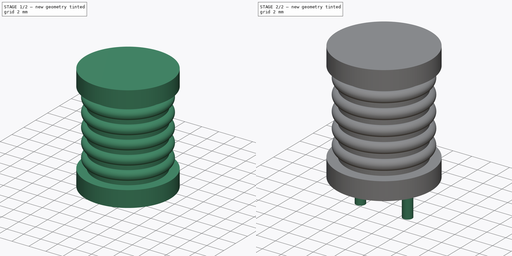
[diagram: build sequence overview — one tinted view per stage of 2, left to right]
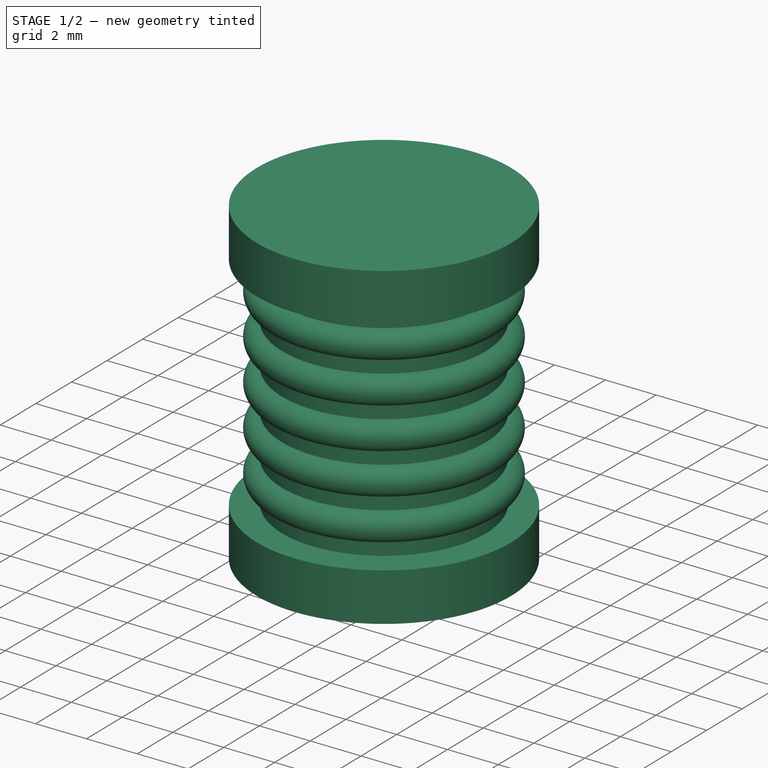
[diagram: stage 1 of 2 — iso view after this stage's code; geometry added in this stage tinted green]
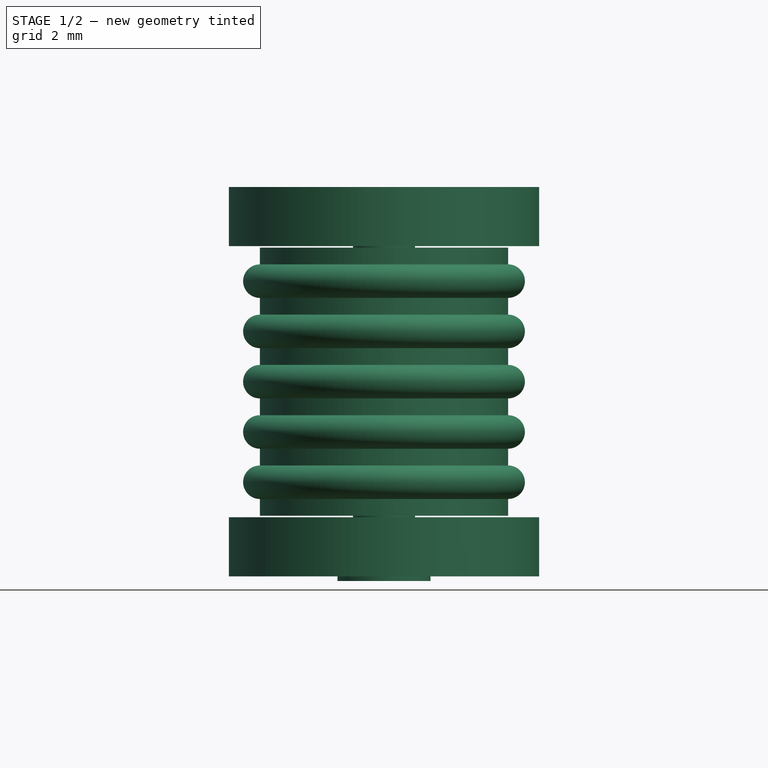
[diagram: stage 1 of 2 — front view after this stage's code; geometry added in this stage tinted green]
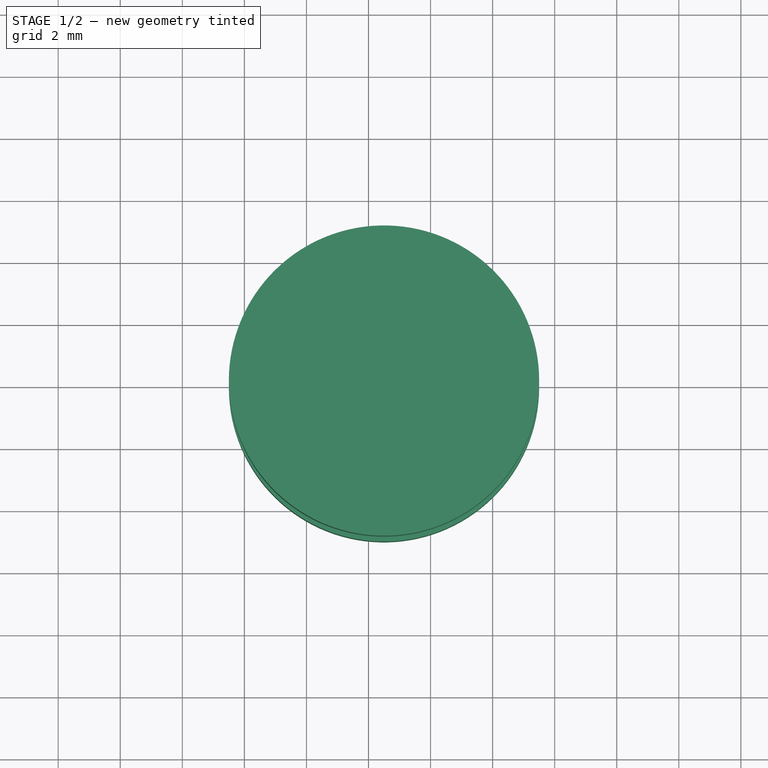
[diagram: stage 1 of 2 — top view after this stage's code; geometry added in this stage tinted green]
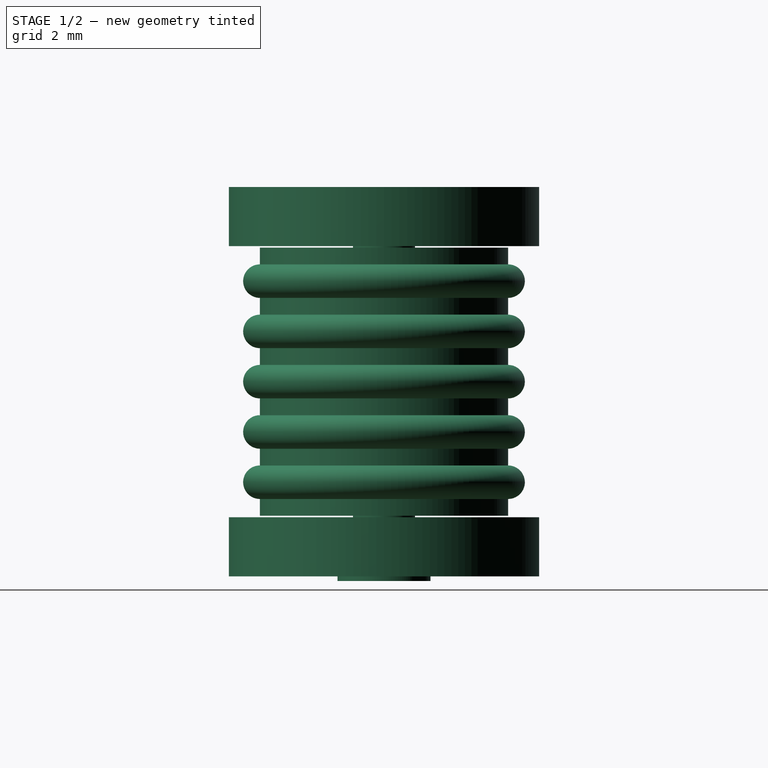
[diagram: stage 1 of 2 — right view after this stage's code; geometry added in this stage tinted green]
FCSTD DOCUMENT  (FreeCAD 0.16R6712 (Git))
Label: L_Radial_D10.0mm_P5.00mm_Fastron_07M
License: All rights reserved
LicenseURL: http://en.wikipedia.org/wiki/All_rights_reserved
objects: Sketcher::SketchObject×3, PartDesign::Revolution×2, Spreadsheet::Sheet×1, PartDesign::Pad×1, Part::MultiFuse×1
note: 10 computed .brp shape members not serialized (recipe doc carries the construction recipe); baked Part::Feature solids carry a one-line shape summary decoded from their .brp

FEATURE [Sketcher::SketchObject] Sketch
  Placement = pos=(2.5,0,0) rot=(1,0,0;1.5708rad)
  expr: Constraints[29] = Spreadsheet.H * 0.15
  expr: Constraints[28] = Spreadsheet.Wx * 0.1
  expr: Constraints[25] = Spreadsheet.RMx / 2 - Spreadsheet.d_wire
  expr: Constraints[22] = Spreadsheet.H
  expr: Placement.Base.x = Spreadsheet.RMx / 2
  expr: Constraints[21] = Spreadsheet.Wx / 2
  expr: Placement.Base.y = Spreadsheet.RMy / 2
  sketch-geometry (10):
    g0: LineSegment StartX=0 StartY=0.05 StartZ=0 EndX=1.5 EndY=0.05 EndZ=0
    g1: LineSegment StartX=1.5 StartY=0.05 StartZ=0 EndX=1.5 EndY=0.2 EndZ=0
    g2: LineSegment StartX=1.5 StartY=0.2 StartZ=0 EndX=5 EndY=0.2 EndZ=0
    g3: LineSegment StartX=5 StartY=0.2 StartZ=0 EndX=5 EndY=2.105 EndZ=0
    g4: LineSegment StartX=5 StartY=2.105 StartZ=0 EndX=1 EndY=2.105 EndZ=0
    g5: LineSegment StartX=1 StartY=2.105 StartZ=0 EndX=1 EndY=10.845 EndZ=0
    g6: LineSegment StartX=1 StartY=10.845 StartZ=0 EndX=5 EndY=10.845 EndZ=0
    g7: LineSegment StartX=5 StartY=10.845 StartZ=0 EndX=5 EndY=12.75 EndZ=0
    g8: LineSegment StartX=5 StartY=12.75 StartZ=0 EndX=0 EndY=12.75 EndZ=0
    g9: LineSegment StartX=0 StartY=12.75 StartZ=0 EndX=0 EndY=0.05 EndZ=0
  constraints (30):
    c: PointOnObject(g0,g-2)
    c: Horizontal(g0)
    c: Coincident(g1,g0)
    c: Vertical(g1)
    c: Coincident(g2,g1)
    c: Horizontal(g2)
    c: Horizontal(g4)
    c: Vertical(g5)
    c: Horizontal(g6)
    c: Coincident(g7,g6)
    c: Coincident(g8,g7)
    c: PointOnObject(g8,g-2)
    c: Horizontal(g8)
    c: Coincident(g9,g8)
    c: Coincident(g9,g0)
    c: Coincident(g2,g3)
    c: Coincident(g4,g5)
    c: Vertical(g3)
    c: Vertical(g7)
    c: DistanceX(g6,g3) = 0
    c: Equal(g7,g3)
    c: DistanceX(g8,g8) = 5
    c: DistanceY(g9,g9) = 12.7
    c: DistanceY(g-1,g0) = 0.05
    c: DistanceY(g-1,g1) = 0.2
    c: DistanceX(g-1,g0) = 1.5
    c: Coincident(g4,g3)
    c: Coincident(g5,g6)
    c: DistanceX(g8,g5) = 1
    c: DistanceY(g7,g7) = 1.905
FEATURE [PartDesign::Revolution] Revolution
  Angle = 360
  Axis = (0,0,1)
  Base = (2.5,0,0)
  Placement = pos=(2.5,0,0) rot=(1,0,0;1.5708rad)
  ReferenceAxis = -> Sketch [V_Axis]
  Reversed = true
  Sketch = -> Sketch
FEATURE [Sketcher::SketchObject] Sketch002
  Placement = pos=(2.5,0,0) rot=(1,0,0;1.5708rad)
  expr: Constraints[48] = (Spreadsheet.H - Spreadsheet.H * 0.3 - 0.25) / 16
  expr: Constraints[25] = (Spreadsheet.H - Spreadsheet.H * 0.3 - 0.25) / 8
  expr: Constraints[6] = Spreadsheet.Wx * 0.1
  expr: Placement.Base.y = Spreadsheet.RMy / 2
  expr: Placement.Base.x = Spreadsheet.RMx / 2
  expr: Constraints[43] = (Spreadsheet.H - Spreadsheet.H * 0.3 - 0.25) / 16
  expr: Constraints[9] = Spreadsheet.Wx * 0.4
  expr: Constraints[5] = Spreadsheet.H * 0.15 + 0.25
  sketch-geometry (15):
    g0: LineSegment StartX=4 StartY=2.155 StartZ=0 EndX=1 EndY=2.155 EndZ=0
    g1: LineSegment StartX=1 StartY=2.155 StartZ=0 EndX=1 EndY=10.795 EndZ=0
    g2: LineSegment StartX=1 StartY=10.795 StartZ=0 EndX=4 EndY=10.795 EndZ=0
    g3: LineSegment [constr] StartX=4 StartY=10.795 StartZ=0 EndX=4 EndY=2.155 EndZ=0
    g4: ArcOfCircle CenterX=4 CenterY=9.715 CenterZ=0 NormalX=0 NormalY=0 NormalZ=1 Radius=0.54 StartAngle=4.71239 EndAngle=7.85398
    g5: ArcOfCircle CenterX=4 CenterY=8.095 CenterZ=0 NormalX=0 NormalY=0 NormalZ=1 Radius=0.54 StartAngle=4.71239 EndAngle=7.85398
    g6: ArcOfCircle CenterX=4 CenterY=6.475 CenterZ=0 NormalX=0 NormalY=0 NormalZ=1 Radius=0.54 StartAngle=4.71239 EndAngle=7.85398
    g7: ArcOfCircle CenterX=4 CenterY=4.855 CenterZ=0 NormalX=0 NormalY=0 NormalZ=1 Radius=0.54 StartAngle=4.71239 EndAngle=7.85398
    g8: ArcOfCircle CenterX=4 CenterY=3.235 CenterZ=0 NormalX=0 NormalY=0 NormalZ=1 Radius=0.54 StartAngle=4.71239 EndAngle=7.85398
    g9: LineSegment StartX=4 StartY=10.795 StartZ=0 EndX=4 EndY=10.255 EndZ=0
    g10: LineSegment StartX=4 StartY=9.175 StartZ=0 EndX=4 EndY=8.635 EndZ=0
    g11: LineSegment StartX=4 StartY=7.555 StartZ=0 EndX=4 EndY=7.015 EndZ=0
    g12: LineSegment StartX=4 StartY=5.935 StartZ=0 EndX=4 EndY=5.395 EndZ=0
    g13: LineSegment StartX=4 StartY=4.315 StartZ=0 EndX=4 EndY=3.775 EndZ=0
    g14: LineSegment StartX=4 StartY=2.155 StartZ=0 EndX=4 EndY=2.695 EndZ=0
  constraints (49):
    c: Horizontal(g0)
    c: Vertical(g1)
    c: Horizontal(g2)
    c: Coincident(g0,g1)
    c: Coincident(g1,g2)
    c: DistanceY(g-1,g0) = 2.155
    c: DistanceX(g-1,g0) = 1
    c: Coincident(g3,g2)
    c: Coincident(g3,g0)
    c: DistanceX(g-1,g0) = 4
    c: PointOnObject(g4,g3)
    c: PointOnObject(g4,g3)
    c: PointOnObject(g4,g3)
    c: PointOnObject(g5,g3)
    c: PointOnObject(g5,g3)
    c: PointOnObject(g5,g3)
    c: PointOnObject(g6,g3)
    c: PointOnObject(g6,g3)
    c: PointOnObject(g7,g3)
    c: PointOnObject(g7,g3)
    c: PointOnObject(g7,g3)
    c: PointOnObject(g8,g3)
    c: PointOnObject(g8,g3)
    c: PointOnObject(g8,g3)
    c: PointOnObject(g6,g3)
    c: DistanceY(g4,g4) = 1.08
    c: Equal(g4,g5)
    c: Equal(g5,g6)
    c: Equal(g6,g7)
    c: Equal(g7,g8)
    c: Coincident(g9,g2)
    c: Coincident(g9,g4)
    c: Coincident(g10,g4)
    c: Coincident(g10,g5)
    c: Vertical(g10)
    c: Coincident(g11,g5)
    c: Coincident(g11,g6)
    c: Coincident(g12,g6)
    c: Coincident(g12,g7)
    c: Coincident(g13,g7)
    c: Coincident(g13,g8)
    c: Coincident(g14,g0)
    c: Coincident(g14,g8)
    c: DistanceY(g4,g2) = 0.54
    c: Equal(g9,g10)
    c: Equal(g10,g11)
    c: Equal(g11,g12)
    c: Equal(g12,g13)
    c: DistanceY(g0,g8) = 0.54
FEATURE [PartDesign::Revolution] Revolution001
  Angle = 360
  Axis = (0,0,1)
  Base = (2.5,0,0)
  Placement = pos=(2.5,0,0) rot=(1,0,0;1.5708rad)
  ReferenceAxis = -> Sketch002 [V_Axis]
  Reversed = true
  Sketch = -> Sketch002
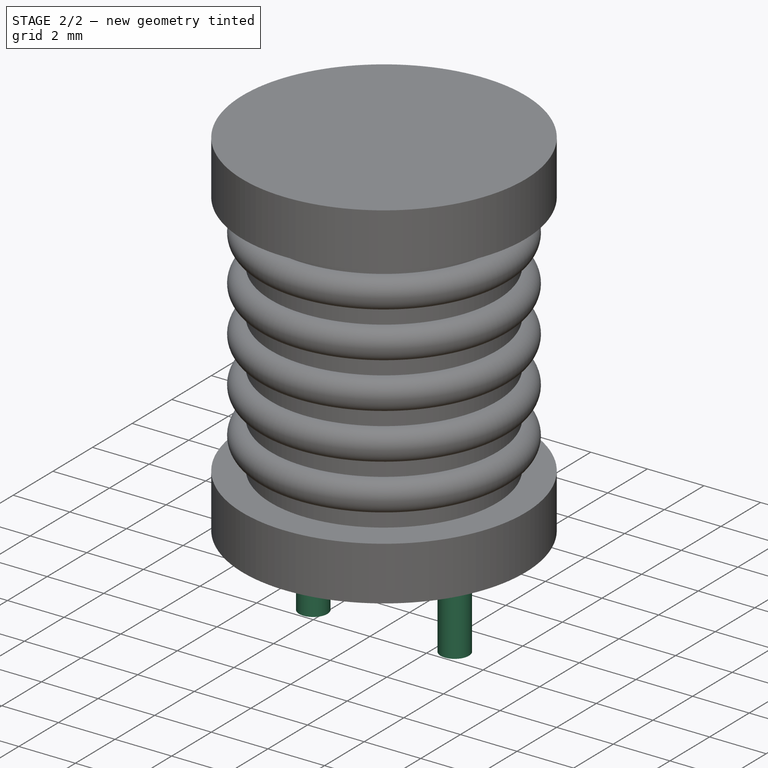
[diagram: stage 2 of 2 — iso view after this stage's code; geometry added in this stage tinted green]
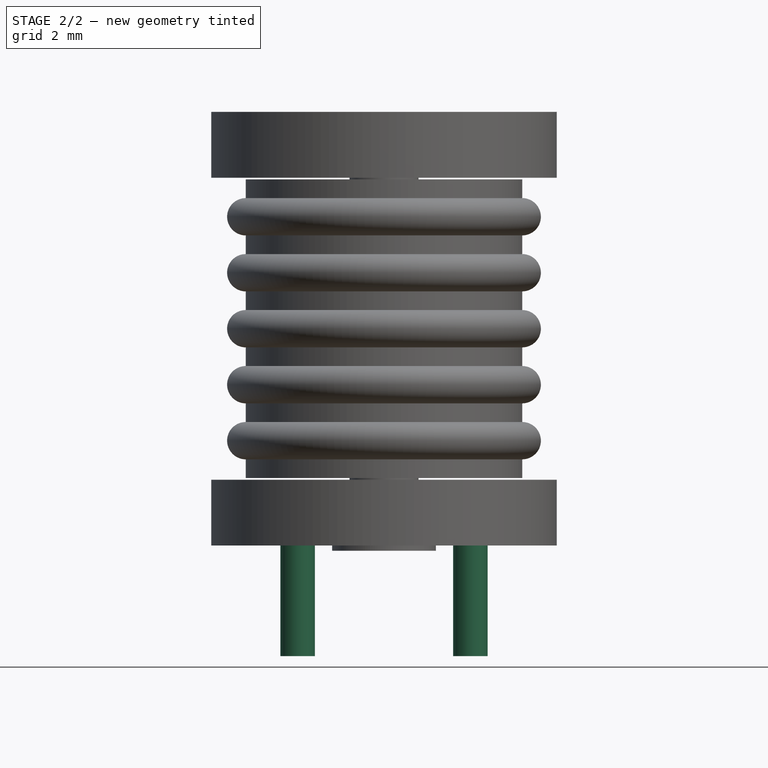
[diagram: stage 2 of 2 — front view after this stage's code; geometry added in this stage tinted green]
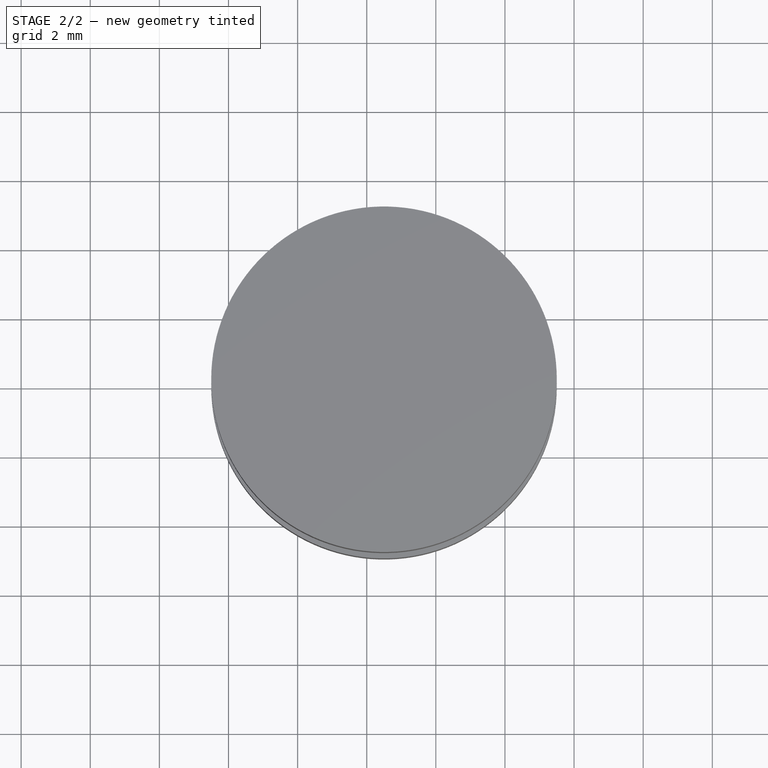
[diagram: stage 2 of 2 — top view after this stage's code; geometry added in this stage tinted green]
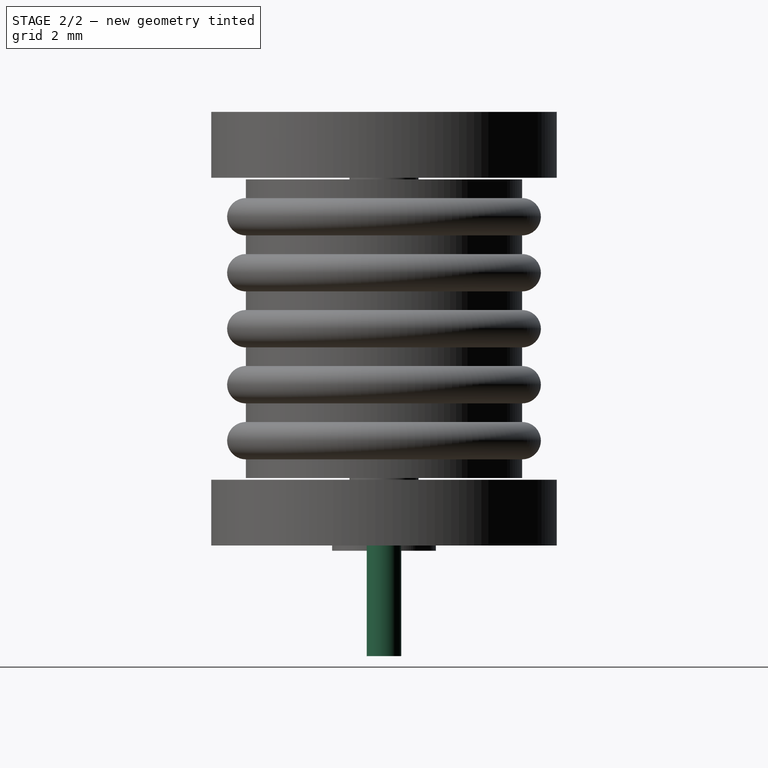
[diagram: stage 2 of 2 — right view after this stage's code; geometry added in this stage tinted green]
FEATURE [Spreadsheet::Sheet] Spreadsheet  label="dimensions"
  cells = A1=Wx; B1(Wx)=10; C1(WW)=10; D1=10; A2=Wy; B2(Wy)=10; D2=10; A3=RM; B3(RMx)=5; C3(RMy)=0; A4=d_wire; B4(d_wire)=1; A5=H; B5(H)=12.7; A6=offsetx; B6(offsetx)=2.5
FEATURE [Sketcher::SketchObject] Sketch001
  Placement = pos=(0,0,0.5) rot=(0,0,1;0rad)
  expr: Constraints[4] = Spreadsheet.RMx
  expr: Constraints[2] = Spreadsheet.RMy
  expr: Constraints[1] = Spreadsheet.d_wire / 2
  sketch-geometry (2):
    g0: Circle CenterX=0 CenterY=0 CenterZ=0 NormalX=0 NormalY=0 NormalZ=1 Radius=0.5
    g1: Circle CenterX=5 CenterY=0 CenterZ=0 NormalX=0 NormalY=0 NormalZ=1 Radius=0.5
  constraints (5):
    c: Equal(g0,g1)
    c: Radius(g0) = 0.5
    c: DistanceY(g-1,g1) = 0
    c: Coincident(g0,g-1)
    c: DistanceX(g-1,g1) = 5
FEATURE [PartDesign::Pad] Pad001
  Length = 3.5
  Length2 = 3.5
  Placement = pos=(0,0,0.5) rot=(0,0,1;0rad)
  Reversed = true
  Sketch = -> Sketch001
  Type = 0
FEATURE [Part::MultiFuse] Revolution001_mp_cp  label="L_Radial_D10.0mm_P5.00mm_Fastron_07M"
  Shapes = -> [Revolution001,Revolution,Pad001]
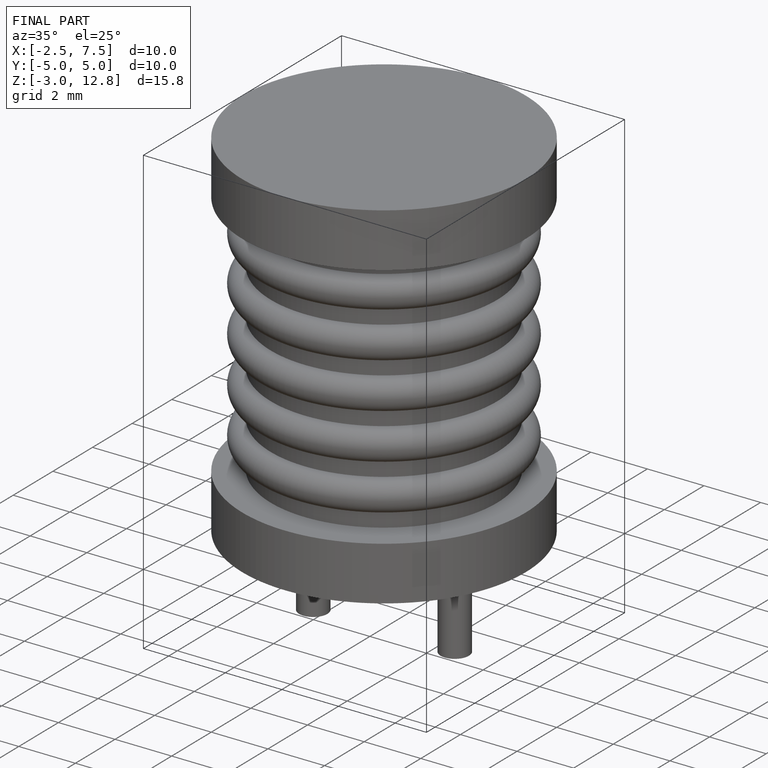
[diagram: finished part — iso view with bounding-box wireframe]
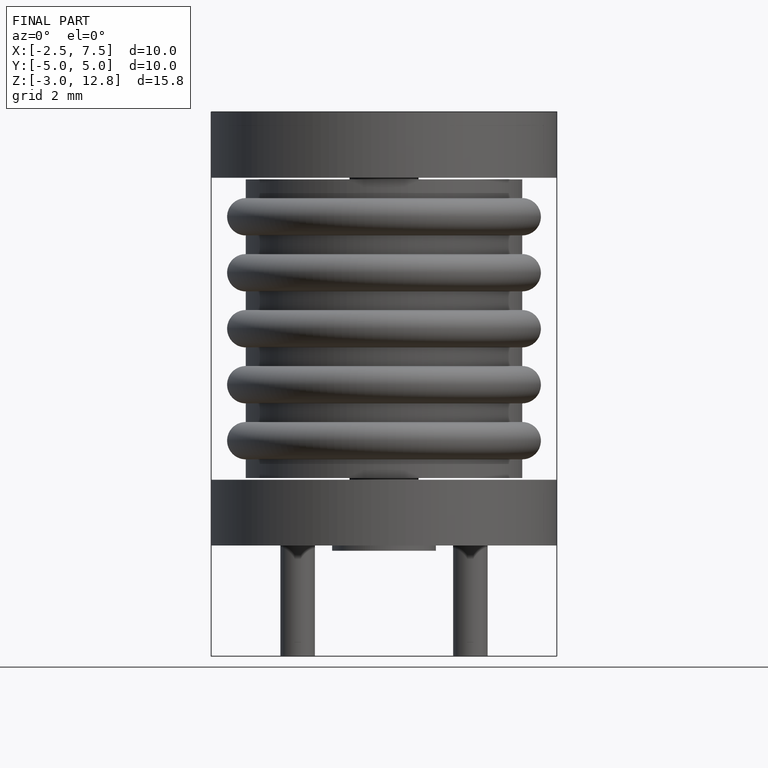
[diagram: finished part — front view with bounding-box wireframe]
